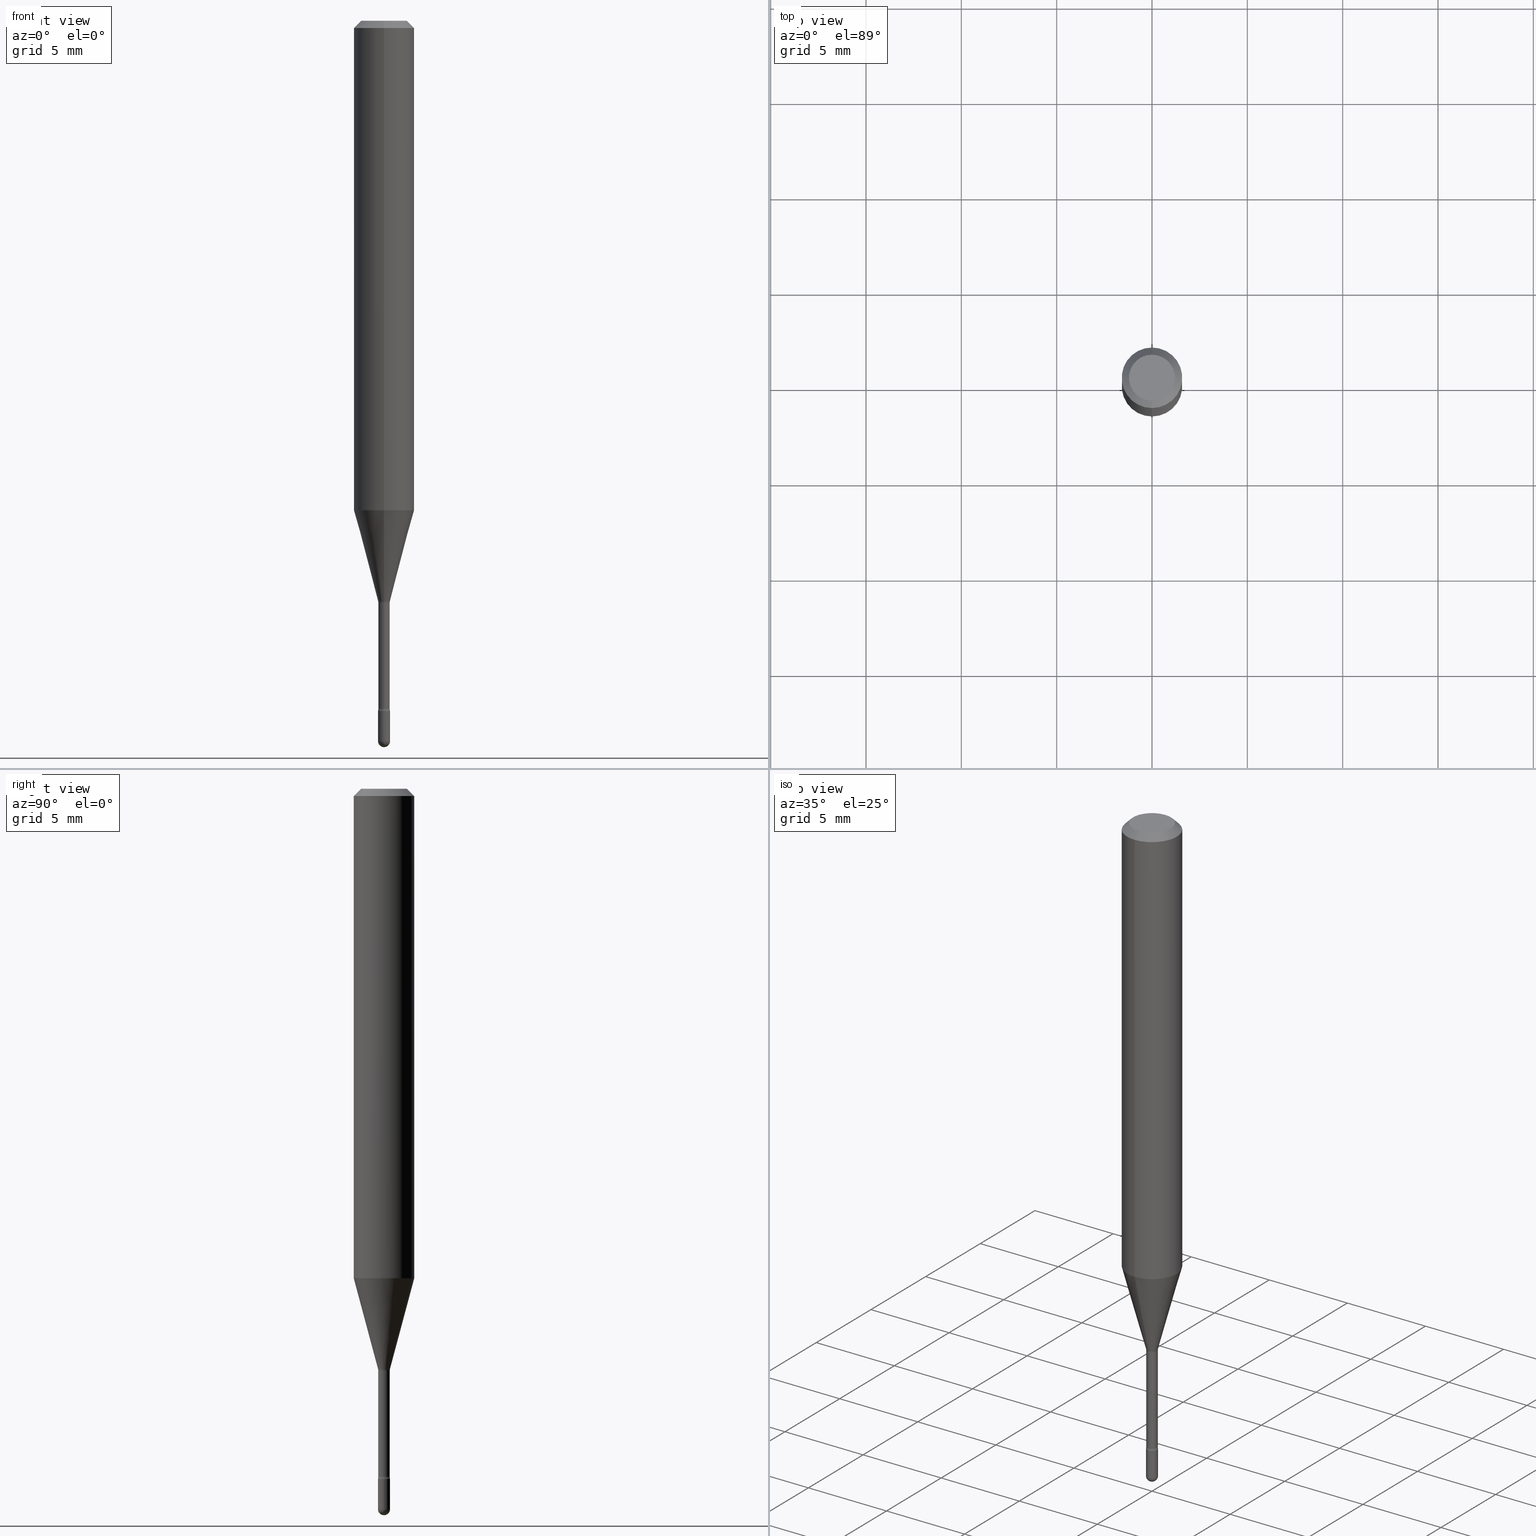
[diagram: canonical four-view strip — front | top / right | iso, engineering-drawing reading convention]
A machine part, canonical four-view strip (front | top / right | iso — engineering-drawing reading convention). The complete STEP part file that produces these views, byte-faithful:
ISO-10303-21;
HEADER;
FILE_DESCRIPTION (( 'STEP AP203' ),
    '1' );
FILE_NAME ('03781.STEP',
    '2024-04-09T20:26:31',
    ( '' ),
    ( '' ),
    'SwSTEP 2.0',
    'SolidWorks 2023',
    '' );
FILE_SCHEMA (( 'CONFIG_CONTROL_DESIGN' ));
ENDSEC;

DATA;
#1 = LOCAL_TIME ( 16, 26, 31.00000000000000000, #391 ) ;
#2 = VERTEX_POINT ( 'NONE', #113 ) ;
#3 = ADVANCED_FACE ( 'NONE', ( #296 ), #215, .F. ) ;
#4 = COORDINATED_UNIVERSAL_TIME_OFFSET ( 5, 0, .BEHIND. ) ;
#5 = CARTESIAN_POINT ( 'NONE',  ( 3.484793048813820547E-29, -4.975360907851483175E-15, -1.425000000000000266 ) ) ;
#6 = MECHANICAL_CONTEXT ( 'NONE', #464, 'mechanical' ) ;
#7 = ORIENTED_EDGE ( 'NONE', *, *, #136, .T. ) ;
#8 = AXIS2_PLACEMENT_3D ( 'NONE', #189, #361, #272 ) ;
#9 = ADVANCED_FACE ( 'NONE', ( #423 ), #115, .T. ) ;
#10 = AXIS2_PLACEMENT_3D ( 'NONE', #258, #249, #69 ) ;
#11 = EDGE_LOOP ( 'NONE', ( #320, #349, #335, #158 ) ) ;
#12 = CARTESIAN_POINT ( 'NONE',  ( 3.637634849200391024E-29, -5.193578491529179010E-15, -1.487500000000000266 ) ) ;
#13 = DATE_AND_TIME ( #86, #1 ) ;
#14 = LINE ( 'NONE', #490, #492 ) ;
#15 = DIRECTION ( 'NONE',  ( -2.445468806185136597E-29, 3.491481338843145583E-15, 1.000000000000000000 ) ) ;
#16 = APPLICATION_CONTEXT ( 'configuration controlled 3d designs of mechanical parts and assemblies' ) ;
#17 = CIRCLE ( 'NONE', #8, 0.01249999999999996947 ) ;
#18 = LINE ( 'NONE', #196, #40 ) ;
#19 = VERTEX_POINT ( 'NONE', #175 ) ;
#20 = DIRECTION ( 'NONE',  ( -2.445512229756394433E-29, 3.491419153817588613E-15, 1.000000000000000000 ) ) ;
#21 = VERTEX_POINT ( 'NONE', #137 ) ;
#22 = DIRECTION ( 'NONE',  ( 1.000000000000000000, -6.982962677686292743E-15, 0.000000000000000000 ) ) ;
#23 = EDGE_CURVE ( 'NONE', #253, #289, #542, .T. ) ;
#24 = ORIENTED_EDGE ( 'NONE', *, *, #527, .T. ) ;
#25 = DIRECTION ( 'NONE',  ( -6.982962677686265922E-15, -1.000000000000000000, 3.491419153817588613E-15 ) ) ;
#26 = CIRCLE ( 'NONE', #453, 0.01250000000000000243 ) ;
#27 = CONICAL_SURFACE ( 'NONE', #282, 0.01226111260566398360, 0.2617993877991499074 ) ;
#28 = CONICAL_SURFACE ( 'NONE', #418, 0.06250000000000000000, 0.7853981633974483900 ) ;
#29 = VERTEX_POINT ( 'NONE', #375 ) ;
#30 = DIRECTION ( 'NONE',  ( 1.000000000000000000, -6.982962677686292743E-15, 0.000000000000000000 ) ) ;
#31 = CC_DESIGN_PERSON_AND_ORGANIZATION_ASSIGNMENT ( #88, #481, ( #266 ) ) ;
#32 = VERTEX_POINT ( 'NONE', #553 ) ;
#33 = AXIS2_PLACEMENT_3D ( 'NONE', #83, #393, #397 ) ;
#34 = TOROIDAL_SURFACE ( 'NONE', #389, 0.02675000000000000294, 0.01499999999999998904 ) ;
#35 = EDGE_LOOP ( 'NONE', ( #71, #279, #530, #89 ) ) ;
#36 = DIRECTION ( 'NONE',  ( -2.445512229756394153E-29, 3.491419153817588613E-15, 1.000000000000000000 ) ) ;
#37 = DIRECTION ( 'NONE',  ( -6.982962677686265922E-15, -1.000000000000000000, 4.370956789862821150E-15 ) ) ;
#38 = DIRECTION ( 'NONE',  ( -2.445512229756394153E-29, 3.491419153817588613E-15, 1.000000000000000000 ) ) ;
#39 = PERSON_AND_ORGANIZATION ( #214, #358 ) ;
#40 = VECTOR ( 'NONE', #153, 39.37007874015748143 ) ;
#41 = PERSON_AND_ORGANIZATION_ROLE ( 'creator' ) ;
#42 = DIRECTION ( 'NONE',  ( -6.982962677686266711E-15, -1.000000000000000000, 3.491419153817588613E-15 ) ) ;
#43 = DIRECTION ( 'NONE',  ( -2.445512229756394153E-29, 3.491419153817588613E-15, 1.000000000000000000 ) ) ;
#44 = DIRECTION ( 'NONE',  ( -6.982962677686265133E-15, -1.000000000000000000, 0.000000000000000000 ) ) ;
#45 = DIRECTION ( 'NONE',  ( -2.445512229756394153E-29, 3.491419153817588613E-15, 1.000000000000000000 ) ) ;
#46 = CIRCLE ( 'NONE', #417, 0.01250000000000000069 ) ;
#47 = PERSON_AND_ORGANIZATION ( #214, #358 ) ;
#48 = VECTOR ( 'NONE', #384, 39.37007874015748143 ) ;
#49 = DIRECTION ( 'NONE',  ( -6.982962677686265922E-15, -1.000000000000000000, 3.491419153817587824E-15 ) ) ;
#50 = EDGE_CURVE ( 'NONE', #509, #489, #130, .T. ) ;
#51 = CARTESIAN_POINT ( 'NONE',  ( 4.440892098500871695E-16, 0.06249999999999647504, -1.010598421515880085 ) ) ;
#52 = CARTESIAN_POINT ( 'NONE',  ( 3.668268344634611408E-31, -5.237128730726412034E-17, -0.01500000000000008271 ) ) ;
#53 = VERTEX_POINT ( 'NONE', #239 ) ;
#54 = CIRCLE ( 'NONE', #300, 0.06250000000000000000 ) ;
#55 = APPROVAL ( #228, 'UNSPECIFIED' ) ;
#56 = FACE_OUTER_BOUND ( 'NONE', #449, .T. ) ;
#57 = ORIENTED_EDGE ( 'NONE', *, *, #506, .F. ) ;
#58 = DIRECTION ( 'NONE',  ( 2.445512229756394153E-29, -3.491419153817588613E-15, -1.000000000000000000 ) ) ;
#59 = EDGE_LOOP ( 'NONE', ( #432, #343, #461, #261 ) ) ;
#60 = VERTEX_POINT ( 'NONE', #413 ) ;
#61 = CARTESIAN_POINT ( 'NONE',  ( -8.204981146278427787E-17, -0.01175000000000420153, -1.201974787463810701 ) ) ;
#62 = CIRCLE ( 'NONE', #315, 0.01499999999999998557 ) ;
#63 = AXIS2_PLACEMENT_3D ( 'NONE', #297, #114, #421 ) ;
#64 = EDGE_LOOP ( 'NONE', ( #411, #237, #161, #123 ) ) ;
#65 = CARTESIAN_POINT ( 'NONE',  ( 3.316907271900976096E-16, 0.04749999999999999362, 3.181929670915790944E-17 ) ) ;
#66 = ORIENTED_EDGE ( 'NONE', *, *, #392, .T. ) ;
#67 = DIRECTION ( 'NONE',  ( -2.445468806185136597E-29, 3.491481338843145583E-15, 1.000000000000000000 ) ) ;
#68 = EDGE_CURVE ( 'NONE', #415, #32, #74, .T. ) ;
#69 = DIRECTION ( 'NONE',  ( 1.000000000000000000, -6.982962677686265922E-15, 4.876176775795935793E-29 ) ) ;
#70 = ORIENTED_EDGE ( 'NONE', *, *, #262, .F. ) ;
#71 = ORIENTED_EDGE ( 'NONE', *, *, #281, .F. ) ;
#72 = FACE_OUTER_BOUND ( 'NONE', #525, .T. ) ;
#73 = ORIENTED_EDGE ( 'NONE', *, *, #302, .T. ) ;
#74 = CIRCLE ( 'NONE', #273, 0.01250000000000000069 ) ;
#75 = AXIS2_PLACEMENT_3D ( 'NONE', #477, #403, #42 ) ;
#76 = LOCAL_TIME ( 16, 26, 31.00000000000000000, #360 ) ;
#77 = ORIENTED_EDGE ( 'NONE', *, *, #470, .F. ) ;
#78 = LINE ( 'NONE', #565, #535 ) ;
#79 = EDGE_CURVE ( 'NONE', #21, #164, #173, .T. ) ;
#80 = EDGE_CURVE ( 'NONE', #21, #489, #564, .T. ) ;
#81 = ORIENTED_EDGE ( 'NONE', *, *, #80, .T. ) ;
#82 = APPLICATION_PROTOCOL_DEFINITION ( 'international standard', 'config_control_design', 1994, #464 ) ;
#83 = CARTESIAN_POINT ( 'NONE',  ( 2.929949865500210976E-29, -4.183043108785318742E-15, -1.198092501787273223 ) ) ;
#84 = ADVANCED_FACE ( 'NONE', ( #267 ), #274, .F. ) ;
#85 = AXIS2_PLACEMENT_3D ( 'NONE', #117, #67, #213 ) ;
#86 = CALENDAR_DATE ( 2024, 9, 4 ) ;
#87 = DIRECTION ( 'NONE',  ( 1.000000000000000000, -7.105427357601001070E-15, 4.926314746995157045E-29 ) ) ;
#88 = PERSON_AND_ORGANIZATION ( #214, #358 ) ;
#89 = ORIENTED_EDGE ( 'NONE', *, *, #111, .F. ) ;
#90 = CARTESIAN_POINT ( 'NONE',  ( 3.473339087963991852E-29, -4.959007687372093417E-15, -1.420316251501201554 ) ) ;
#91 = EDGE_CURVE ( 'NONE', #29, #415, #438, .T. ) ;
#92 = APPROVAL_DATE_TIME ( #143, #546 ) ;
#93 = EDGE_LOOP ( 'NONE', ( #257, #150, #168, #100 ) ) ;
#94 = DIRECTION ( 'NONE',  ( -2.445468806185136877E-29, 3.491481338843145188E-15, 1.000000000000000000 ) ) ;
#95 = VECTOR ( 'NONE', #94, 39.37007874015748143 ) ;
#96 = AXIS2_PLACEMENT_3D ( 'NONE', #386, #562, #170 ) ;
#97 = DIRECTION ( 'NONE',  ( -6.982962677686265133E-15, -1.000000000000000000, 0.000000000000000000 ) ) ;
#98 = DIRECTION ( 'NONE',  ( -6.982962677686265922E-15, -1.000000000000000000, 3.483106191921935554E-15 ) ) ;
#99 = VERTEX_POINT ( 'NONE', #230 ) ;
#100 = ORIENTED_EDGE ( 'NONE', *, *, #80, .F. ) ;
#101 = FACE_OUTER_BOUND ( 'NONE', #512, .T. ) ;
#102 = VERTEX_POINT ( 'NONE', #405 ) ;
#103 = ADVANCED_FACE ( 'NONE', ( #222 ), #146, .T. ) ;
#104 = AXIS2_PLACEMENT_3D ( 'NONE', #232, #543, #377 ) ;
#105 = CARTESIAN_POINT ( 'NONE',  ( 3.668268344634611408E-31, -5.237128730726412034E-17, -0.01500000000000008271 ) ) ;
#106 = DIMENSIONAL_EXPONENTS ( 1.000000000000000000, 0.000000000000000000, 0.000000000000000000, 0.000000000000000000, 0.000000000000000000, 0.000000000000000000, 0.000000000000000000 ) ;
#107 = SPHERICAL_SURFACE ( 'NONE', #186, 0.01249999999999996947 ) ;
#108 = ORIENTED_EDGE ( 'NONE', *, *, #50, .F. ) ;
#109 = VERTEX_POINT ( 'NONE', #177 ) ;
#110 = DIRECTION ( 'NONE',  ( -6.982962677686265133E-15, -1.000000000000000000, 3.491419153817589797E-15 ) ) ;
#111 = EDGE_CURVE ( 'NONE', #398, #234, #62, .T. ) ;
#112 = CIRCLE ( 'NONE', #308, 0.01499999999999998904 ) ;
#113 = CARTESIAN_POINT ( 'NONE',  ( -3.773273898774340269E-16, -0.04749999999999999362, 8.309242394607611627E-17 ) ) ;
#114 = DIRECTION ( 'NONE',  ( -2.445512229756394153E-29, 3.491419153817588613E-15, 1.000000000000000000 ) ) ;
#115 = CYLINDRICAL_SURFACE ( 'NONE', #202, 0.01250000000000000243 ) ;
#116 = ORIENTED_EDGE ( 'NONE', *, *, #136, .F. ) ;
#117 = CARTESIAN_POINT ( 'NONE',  ( 0.000000000000000000, 0.000000000000000000, 0.000000000000000000 ) ) ;
#118 = EDGE_CURVE ( 'NONE', #29, #172, #532, .T. ) ;
#119 = EDGE_CURVE ( 'NONE', #102, #234, #46, .T. ) ;
#120 = DIRECTION ( 'NONE',  ( -2.445512229756394153E-29, 3.491419153817588613E-15, 1.000000000000000000 ) ) ;
#121 = AXIS2_PLACEMENT_3D ( 'NONE', #210, #340, #250 ) ;
#122 = DIRECTION ( 'NONE',  ( -1.807323732225327773E-15, -0.2588190451025178529, 0.9659258262890690894 ) ) ;
#123 = ORIENTED_EDGE ( 'NONE', *, *, #392, .F. ) ;
#124 = DATE_AND_TIME ( #476, #454 ) ;
#125 = DIRECTION ( 'NONE',  ( 1.000000000000000000, -6.982962677686292743E-15, 0.000000000000000000 ) ) ;
#126 = ADVANCED_FACE ( 'NONE', ( #314 ), #276, .T. ) ;
#127 = CC_DESIGN_PERSON_AND_ORGANIZATION_ASSIGNMENT ( #190, #41, ( #256 ) ) ;
#128 = APPROVAL_DATE_TIME ( #13, #55 ) ;
#129 = DIRECTION ( 'NONE',  ( -2.445512229756394153E-29, 3.491419153817588613E-15, 1.000000000000000000 ) ) ;
#130 = CIRCLE ( 'NONE', #325, 0.06250000000000000000 ) ;
#131 = VECTOR ( 'NONE', #407, 39.37007874015748143 ) ;
#132 = CC_DESIGN_APPROVAL ( #546, ( #442 ) ) ;
#133 = DATE_AND_TIME ( #531, #236 ) ;
#134 = EDGE_CURVE ( 'NONE', #53, #32, #350, .T. ) ;
#135 = SPHERICAL_SURFACE ( 'NONE', #235, 0.01249999999999996947 ) ;
#136 = EDGE_CURVE ( 'NONE', #60, #19, #112, .T. ) ;
#137 = CARTESIAN_POINT ( 'NONE',  ( -4.364351673553669682E-16, -0.06250000000000353884, -1.010598421515879641 ) ) ;
#138 = DIRECTION ( 'NONE',  ( 1.000000000000000000, 0.000000000000000000, 0.000000000000000000 ) ) ;
#139 = ORIENTED_EDGE ( 'NONE', *, *, #295, .T. ) ;
#140 = CARTESIAN_POINT ( 'NONE',  ( -0.01250000000000000243, 8.881784197001254049E-17, -6.148668862818633278E-31 ) ) ;
#141 = PRODUCT_RELATED_PRODUCT_CATEGORY ( 'detail', '', ( #191 ) ) ;
#142 = CARTESIAN_POINT ( 'NONE',  ( -1.867942516280782514E-16, -0.02675000000000419750, -1.201974787463810701 ) ) ;
#143 = DATE_AND_TIME ( #487, #76 ) ;
#144 = EDGE_CURVE ( 'NONE', #398, #99, #326, .T. ) ;
#145 = DIRECTION ( 'NONE',  ( -6.982962677686265922E-15, -1.000000000000000000, 4.370956789862821150E-15 ) ) ;
#146 = CONICAL_SURFACE ( 'NONE', #33, 0.01226111260566398360, 0.2617993877991499074 ) ;
#147 = CIRCLE ( 'NONE', #96, 0.01175000000000000523 ) ;
#148 = DIRECTION ( 'NONE',  ( -2.445512229756394153E-29, 3.491419153817588613E-15, 1.000000000000000000 ) ) ;
#149 = DIRECTION ( 'NONE',  ( 1.000000000000000000, -6.982962677686292743E-15, 0.000000000000000000 ) ) ;
#150 = ORIENTED_EDGE ( 'NONE', *, *, #262, .T. ) ;
#151 = DIRECTION ( 'NONE',  ( -6.982962677686266711E-15, -1.000000000000000000, 0.000000000000000000 ) ) ;
#152 = VECTOR ( 'NONE', #20, 39.37007874015748143 ) ;
#153 = DIRECTION ( 'NONE',  ( 4.937700262164548042E-15, 0.7071067811865451302, -0.7071067811865499042 ) ) ;
#154 = APPROVAL_PERSON_ORGANIZATION ( #47, #55, #313 ) ;
#155 = ORIENTED_EDGE ( 'NONE', *, *, #544, .F. ) ;
#156 = DIRECTION ( 'NONE',  ( -6.982962677686265922E-15, -1.000000000000000000, 3.491419153817587824E-15 ) ) ;
#157 = CARTESIAN_POINT ( 'NONE',  ( 3.668268344634611408E-31, -5.237128730726412034E-17, -0.01500000000000008271 ) ) ;
#158 = ORIENTED_EDGE ( 'NONE', *, *, #470, .T. ) ;
#159 = EDGE_CURVE ( 'NONE', #99, #19, #14, .T. ) ;
#160 =( CONVERSION_BASED_UNIT ( 'INCH', #419 ) LENGTH_UNIT ( ) NAMED_UNIT ( #106 ) );
#161 = ORIENTED_EDGE ( 'NONE', *, *, #355, .F. ) ;
#162 = DIRECTION ( 'NONE',  ( -6.982962677686266711E-15, -1.000000000000000000, 3.491419153817588613E-15 ) ) ;
#163 = VECTOR ( 'NONE', #322, 39.37007874015748854 ) ;
#164 = VERTEX_POINT ( 'NONE', #51 ) ;
#165 = ORIENTED_EDGE ( 'NONE', *, *, #364, .T. ) ;
#166 = FACE_OUTER_BOUND ( 'NONE', #169, .T. ) ;
#167 = ADVANCED_FACE ( 'NONE', ( #354 ), #551, .F. ) ;
#168 = ORIENTED_EDGE ( 'NONE', *, *, #302, .F. ) ;
#169 = EDGE_LOOP ( 'NONE', ( #183, #537 ) ) ;
#170 = DIRECTION ( 'NONE',  ( -6.982962677686265922E-15, -1.000000000000000000, 0.000000000000000000 ) ) ;
#171 = DIRECTION ( 'NONE',  ( 6.982962677686265922E-15, 1.000000000000000000, -3.491419153817588613E-15 ) ) ;
#172 = VERTEX_POINT ( 'NONE', #493 ) ;
#173 = CIRCLE ( 'NONE', #255, 0.06250000000000000000 ) ;
#174 = APPROVAL_PERSON_ORGANIZATION ( #39, #225, #388 ) ;
#175 = CARTESIAN_POINT ( 'NONE',  ( 8.348877145184664215E-17, 0.01174999999999580894, -1.201974787463810701 ) ) ;
#176 = DATE_AND_TIME ( #269, #494 ) ;
#177 = CARTESIAN_POINT ( 'NONE',  ( 3.840629472727447874E-16, 0.04749999999999999362, -2.485923956665947374E-16 ) ) ;
#178 =( NAMED_UNIT ( * ) SI_UNIT ( $, .STERADIAN. ) SOLID_ANGLE_UNIT ( ) );
#179 = FACE_OUTER_BOUND ( 'NONE', #35, .T. ) ;
#180 = DIRECTION ( 'NONE',  ( -2.445512229756394433E-29, 3.491419153817588613E-15, 1.000000000000000000 ) ) ;
#181 = ADVANCED_FACE ( 'NONE', ( #441 ), #135, .T. ) ;
#182 = APPROVAL_ROLE ( '' ) ;
#183 = ORIENTED_EDGE ( 'NONE', *, *, #68, .T. ) ;
#184 = DIRECTION ( 'NONE',  ( -1.000000000000000000, 6.982962677686265922E-15, -4.883557194083112340E-29 ) ) ;
#185 = CLOSED_SHELL ( 'NONE', ( #488, #404, #465, #181, #9 ) ) ;
#186 = AXIS2_PLACEMENT_3D ( 'NONE', #416, #474, #294 ) ;
#187 = AXIS2_PLACEMENT_3D ( 'NONE', #518, #344, #30 ) ;
#188 = PERSON_AND_ORGANIZATION ( #214, #358 ) ;
#189 = CARTESIAN_POINT ( 'NONE',  ( 3.637634849200391024E-29, -5.193578491529179010E-15, -1.487500000000000266 ) ) ;
#190 = PERSON_AND_ORGANIZATION ( #214, #358 ) ;
#191 = PRODUCT ( '03781', '03781', '', ( #6 ) ) ;
#192 = CARTESIAN_POINT ( 'NONE',  ( -8.561889171223090403E-17, -0.01226111260566816602, -1.198092501787273223 ) ) ;
#193 = CIRCLE ( 'NONE', #566, 0.01499999999999998557 ) ;
#194 = CC_DESIGN_SECURITY_CLASSIFICATION ( #266, ( #256 ) ) ;
#195 = EDGE_CURVE ( 'NONE', #32, #415, #380, .T. ) ;
#196 = CARTESIAN_POINT ( 'NONE',  ( 4.364351673553919652E-16, 0.06249999999999995143, -0.01500000000000030129 ) ) ;
#197 = CYLINDRICAL_SURFACE ( 'NONE', #336, 0.06250000000000000000 ) ;
#198 = DIRECTION ( 'NONE',  ( 1.000000000000000000, -6.982962677686294321E-15, 0.000000000000000000 ) ) ;
#199 = ADVANCED_FACE ( 'NONE', ( #179 ), #466, .F. ) ;
#200 = LINE ( 'NONE', #204, #131 ) ;
#201 = ORIENTED_EDGE ( 'NONE', *, *, #195, .F. ) ;
#202 = AXIS2_PLACEMENT_3D ( 'NONE', #478, #445, #359 ) ;
#203 = CIRCLE ( 'NONE', #247, 0.01226111260566398360 ) ;
#204 = CARTESIAN_POINT ( 'NONE',  ( -4.287811248607203282E-16, -0.06250000000000005551, -0.01499999999999986587 ) ) ;
#205 = AXIS2_PLACEMENT_3D ( 'NONE', #427, #513, #298 ) ;
#206 = ORIENTED_EDGE ( 'NONE', *, *, #409, .T. ) ;
#207 = CARTESIAN_POINT ( 'NONE',  ( 2.939391848563758953E-29, -4.196672540189851950E-15, -1.201974787463810923 ) ) ;
#208 = ORIENTED_EDGE ( 'NONE', *, *, #506, .T. ) ;
#209 = FACE_OUTER_BOUND ( 'NONE', #59, .T. ) ;
#210 = CARTESIAN_POINT ( 'NONE',  ( 3.484854927402862201E-29, -4.975272294190064346E-15, -1.425000000000000266 ) ) ;
#211 = AXIS2_PLACEMENT_3D ( 'NONE', #52, #58, #456 ) ;
#212 = EDGE_CURVE ( 'NONE', #329, #288, #400, .T. ) ;
#213 = DIRECTION ( 'NONE',  ( 1.000000000000000000, -6.982962677686267499E-15, 4.876176775795936353E-29 ) ) ;
#214 = PERSON ( 'UNSPECIFIED', 'UNSPECIFIED', 'UNSPECIFIED', ('UNSPECIFIED'), ('UNSPECIFIED'), ('UNSPECIFIED') ) ;
#215 = PLANE ( 'NONE',  #245 ) ;
#216 = CARTESIAN_POINT ( 'NONE',  ( -8.204981146281379852E-17, -0.01175000000000002605, 5.190975739486028693E-16 ) ) ;
#217 = EDGE_CURVE ( 'NONE', #329, #172, #17, .T. ) ;
#218 = EDGE_LOOP ( 'NONE', ( #475, #455, #420, #155 ) ) ;
#219 = APPROVAL_STATUS ( 'not_yet_approved' ) ;
#220 = AXIS2_PLACEMENT_3D ( 'NONE', #90, #129, #268 ) ;
#221 = APPLICATION_PROTOCOL_DEFINITION ( 'international standard', 'config_control_design', 1994, #16 ) ;
#222 = FACE_OUTER_BOUND ( 'NONE', #516, .T. ) ;
#223 = ORIENTED_EDGE ( 'NONE', *, *, #240, .F. ) ;
#224 = CARTESIAN_POINT ( 'NONE',  ( 3.637634849200391024E-29, -5.193578491529179010E-15, -1.487500000000000266 ) ) ;
#225 = APPROVAL ( #219, 'UNSPECIFIED' ) ;
#226 = DIRECTION ( 'NONE',  ( -2.445468806185136597E-29, 3.491481338843145583E-15, 1.000000000000000000 ) ) ;
#227 = CIRCLE ( 'NONE', #373, 0.01175000000000004513 ) ;
#228 = APPROVAL_STATUS ( 'not_yet_approved' ) ;
#229 = DIRECTION ( 'NONE',  ( 7.105427357601000281E-15, 1.000000000000000000, 0.000000000000000000 ) ) ;
#230 = CARTESIAN_POINT ( 'NONE',  ( 8.615330671094704487E-17, 0.01174999999999508729, -1.420316251501201554 ) ) ;
#231 = EDGE_CURVE ( 'NONE', #164, #21, #54, .T. ) ;
#232 = CARTESIAN_POINT ( 'NONE',  ( 2.939391848563758953E-29, -4.196672540189851950E-15, -1.201974787463810923 ) ) ;
#233 = DIRECTION ( 'NONE',  ( -2.445512229756393873E-29, 3.491419153817588613E-15, 1.000000000000000000 ) ) ;
#234 = VERTEX_POINT ( 'NONE', #511 ) ;
#235 = AXIS2_PLACEMENT_3D ( 'NONE', #12, #439, #311 ) ;
#236 = LOCAL_TIME ( 16, 26, 31.00000000000000000, #402 ) ;
#237 = ORIENTED_EDGE ( 'NONE', *, *, #212, .T. ) ;
#238 = FACE_OUTER_BOUND ( 'NONE', #64, .T. ) ;
#239 = CARTESIAN_POINT ( 'NONE',  ( -0.01250000000000000243, -4.995651857720318490E-15, -1.487499999999999822 ) ) ;
#240 = EDGE_CURVE ( 'NONE', #253, #60, #203, .T. ) ;
#241 = PLANE ( 'NONE',  #480 ) ;
#242 = DIRECTION ( 'NONE',  ( -2.445468806185136597E-29, 3.491481338843145583E-15, 1.000000000000000000 ) ) ;
#243 = ORIENTED_EDGE ( 'NONE', *, *, #557, .T. ) ;
#244 = DIRECTION ( 'NONE',  ( -2.445468806185136597E-29, 3.491481338843145583E-15, 1.000000000000000000 ) ) ;
#245 = AXIS2_PLACEMENT_3D ( 'NONE', #65, #517, #171 ) ;
#246 = ORIENTED_EDGE ( 'NONE', *, *, #217, .T. ) ;
#247 = AXIS2_PLACEMENT_3D ( 'NONE', #548, #319, #499 ) ;
#248 = CARTESIAN_POINT ( 'NONE',  ( 3.668737688208442503E-29, -5.236456604015251240E-15, -1.500000000000000222 ) ) ;
#249 = DIRECTION ( 'NONE',  ( -2.438088387897960049E-29, 3.491481338843145188E-15, 1.000000000000000000 ) ) ;
#250 = DIRECTION ( 'NONE',  ( -6.982962677686265133E-15, -1.000000000000000000, 0.000000000000000000 ) ) ;
#251 = MANIFOLD_SOLID_BREP ( 'Body-Move/Copy2[1]', #185 ) ;
#252 = DIRECTION ( 'NONE',  ( -2.445512229756394153E-29, 3.491419153817588613E-15, 1.000000000000000000 ) ) ;
#253 = VERTEX_POINT ( 'NONE', #192 ) ;
#254 = DIRECTION ( 'NONE',  ( -6.982962677686266711E-15, -1.000000000000000000, 3.491419153817588613E-15 ) ) ;
#255 = AXIS2_PLACEMENT_3D ( 'NONE', #323, #252, #37 ) ;
#256 = PRODUCT_DEFINITION_FORMATION_WITH_SPECIFIED_SOURCE ( 'ANY', '', #191, .NOT_KNOWN. ) ;
#257 = ORIENTED_EDGE ( 'NONE', *, *, #79, .T. ) ;
#258 = CARTESIAN_POINT ( 'NONE',  ( 3.484793048813820547E-29, -4.975360907851483175E-15, -1.425000000000000266 ) ) ;
#259 = ADVANCED_FACE ( 'NONE', ( #371 ), #291, .T. ) ;
#260 = COORDINATED_UNIVERSAL_TIME_OFFSET ( 5, 0, .BEHIND. ) ;
#261 = ORIENTED_EDGE ( 'NONE', *, *, #409, .F. ) ;
#262 = EDGE_CURVE ( 'NONE', #164, #509, #287, .T. ) ;
#263 = SHAPE_DEFINITION_REPRESENTATION ( #316, #342 ) ;
#264 = CARTESIAN_POINT ( 'NONE',  ( 3.637634849200390463E-29, -5.193578491529179010E-15, -1.487499999999999822 ) ) ;
#265 = AXIS2_PLACEMENT_3D ( 'NONE', #357, #312, #528 ) ;
#266 = SECURITY_CLASSIFICATION ( '', '', #362 ) ;
#267 = FACE_OUTER_BOUND ( 'NONE', #410, .T. ) ;
#268 = DIRECTION ( 'NONE',  ( -6.982962677686266711E-15, -1.000000000000000000, 3.491419153817588613E-15 ) ) ;
#269 = CALENDAR_DATE ( 2024, 9, 4 ) ;
#270 = DIRECTION ( 'NONE',  ( -1.000000000000000000, 7.105427357601001070E-15, -4.926315508542082329E-29 ) ) ;
#271 = DATE_TIME_ROLE ( 'creation_date' ) ;
#272 = DIRECTION ( 'NONE',  ( 6.982962677686265922E-15, 1.000000000000000000, 0.000000000000000000 ) ) ;
#273 = AXIS2_PLACEMENT_3D ( 'NONE', #285, #242, #198 ) ;
#274 = TOROIDAL_SURFACE ( 'NONE', #104, 0.02675000000000000294, 0.01499999999999998904 ) ;
#275 = AXIS2_PLACEMENT_3D ( 'NONE', #328, #15, #22 ) ;
#276 = CYLINDRICAL_SURFACE ( 'NONE', #293, 0.06250000000000000000 ) ;
#277 = DESIGN_CONTEXT ( 'detailed design', #16, 'design' ) ;
#278 = DIRECTION ( 'NONE',  ( 7.105427357600997914E-15, 1.000000000000000000, 0.000000000000000000 ) ) ;
#279 = ORIENTED_EDGE ( 'NONE', *, *, #318, .T. ) ;
#280 = CARTESIAN_POINT ( 'NONE',  ( 3.637634849200390463E-29, -5.193578491529179010E-15, -1.487499999999999822 ) ) ;
#281 = EDGE_CURVE ( 'NONE', #99, #398, #227, .T. ) ;
#282 = AXIS2_PLACEMENT_3D ( 'NONE', #545, #148, #372 ) ;
#283 = CIRCLE ( 'NONE', #338, 0.01175000000000000523 ) ;
#284 = DIRECTION ( 'NONE',  ( 1.000000000000000000, -7.105427357601001070E-15, 4.926314746995157045E-29 ) ) ;
#285 = CARTESIAN_POINT ( 'NONE',  ( 3.484793048813820547E-29, -4.975360907851483175E-15, -1.425000000000000266 ) ) ;
#286 = ORIENTED_EDGE ( 'NONE', *, *, #563, .F. ) ;
#287 = LINE ( 'NONE', #496, #152 ) ;
#288 = VERTEX_POINT ( 'NONE', #552 ) ;
#289 = VERTEX_POINT ( 'NONE', #61 ) ;
#290 = ORIENTED_EDGE ( 'NONE', *, *, #549, .T. ) ;
#291 = CYLINDRICAL_SURFACE ( 'NONE', #425, 0.01175000000000002605 ) ;
#292 = ORIENTED_EDGE ( 'NONE', *, *, #91, .F. ) ;
#293 = AXIS2_PLACEMENT_3D ( 'NONE', #436, #307, #49 ) ;
#294 = DIRECTION ( 'NONE',  ( 6.982962677686266711E-15, 1.000000000000000000, 0.000000000000000000 ) ) ;
#295 = EDGE_CURVE ( 'NONE', #109, #509, #18, .T. ) ;
#296 = FACE_OUTER_BOUND ( 'NONE', #498, .T. ) ;
#297 = CARTESIAN_POINT ( 'NONE',  ( 2.023868620877359543E-45, -2.888851566041158164E-31, -8.274998586025931673E-17 ) ) ;
#298 = DIRECTION ( 'NONE',  ( -6.982962677686265133E-15, -1.000000000000000000, 3.491419153817589797E-15 ) ) ;
#299 = CARTESIAN_POINT ( 'NONE',  ( 2.929949865500210976E-29, -4.183043108785318742E-15, -1.198092501787273223 ) ) ;
#300 = AXIS2_PLACEMENT_3D ( 'NONE', #363, #540, #145 ) ;
#301 = CARTESIAN_POINT ( 'NONE',  ( 0.01250000000000000069, -5.062647941322562298E-15, -1.425000000000000266 ) ) ;
#302 = EDGE_CURVE ( 'NONE', #489, #509, #433, .T. ) ;
#303 = ORIENTED_EDGE ( 'NONE', *, *, #306, .F. ) ;
#304 = DIRECTION ( 'NONE',  ( -2.445512229756394433E-29, 3.491419153817588613E-15, 1.000000000000000000 ) ) ;
#305 = PERSON_AND_ORGANIZATION ( #214, #358 ) ;
#306 = EDGE_CURVE ( 'NONE', #60, #164, #452, .T. ) ;
#307 = DIRECTION ( 'NONE',  ( -2.445512229756394153E-29, 3.491419153817588613E-15, 1.000000000000000000 ) ) ;
#308 = AXIS2_PLACEMENT_3D ( 'NONE', #443, #87, #229 ) ;
#309 = CC_DESIGN_APPROVAL ( #225, ( #266 ) ) ;
#310 = ORIENTED_EDGE ( 'NONE', *, *, #231, .T. ) ;
#311 = DIRECTION ( 'NONE',  ( 6.982962677686266711E-15, 1.000000000000000000, 0.000000000000000000 ) ) ;
#312 = DIRECTION ( 'NONE',  ( -2.445512229756394153E-29, 3.491419153817588613E-15, 1.000000000000000000 ) ) ;
#313 = APPROVAL_ROLE ( '' ) ;
#314 = FACE_OUTER_BOUND ( 'NONE', #501, .T. ) ;
#315 = AXIS2_PLACEMENT_3D ( 'NONE', #446, #184, #44 ) ;
#316 = PRODUCT_DEFINITION_SHAPE ( 'NONE', 'NONE',  #442 ) ;
#317 = DIRECTION ( 'NONE',  ( -2.445512229756394153E-29, 3.491419153817588613E-15, 1.000000000000000000 ) ) ;
#318 = EDGE_CURVE ( 'NONE', #99, #102, #193, .T. ) ;
#319 = DIRECTION ( 'NONE',  ( -2.445512229756394153E-29, 3.491419153817588613E-15, 1.000000000000000000 ) ) ;
#320 = ORIENTED_EDGE ( 'NONE', *, *, #318, .F. ) ;
#321 = CC_DESIGN_PERSON_AND_ORGANIZATION_ASSIGNMENT ( #188, #491, ( #256 ) ) ;
#322 = DIRECTION ( 'NONE',  ( 1.839019923739597554E-15, 0.2588190451025245697, 0.9659258262890670910 ) ) ;
#323 = CARTESIAN_POINT ( 'NONE',  ( 2.471430799189591968E-29, -3.528422685698364125E-15, -1.010598421515879863 ) ) ;
#324 = ORIENTED_EDGE ( 'NONE', *, *, #91, .T. ) ;
#325 = AXIS2_PLACEMENT_3D ( 'NONE', #157, #45, #394 ) ;
#326 = CIRCLE ( 'NONE', #265, 0.01175000000000004513 ) ;
#327 = CIRCLE ( 'NONE', #121, 0.01250000000000000069 ) ;
#328 = CARTESIAN_POINT ( 'NONE',  ( 3.637634849200390463E-29, -5.193578491529179010E-15, -1.487499999999999822 ) ) ;
#329 = VERTEX_POINT ( 'NONE', #248 ) ;
#330 = DIRECTION ( 'NONE',  ( -2.445512229756394153E-29, 3.491419153817588613E-15, 1.000000000000000000 ) ) ;
#331 = ORIENTED_EDGE ( 'NONE', *, *, #563, .T. ) ;
#332 = LINE ( 'NONE', #216, #48 ) ;
#333 = ADVANCED_FACE ( 'NONE', ( #550 ), #197, .T. ) ;
#334 = CC_DESIGN_DATE_AND_TIME_ASSIGNMENT ( #133, #271, ( #442 ) ) ;
#335 = ORIENTED_EDGE ( 'NONE', *, *, #111, .T. ) ;
#336 = AXIS2_PLACEMENT_3D ( 'NONE', #458, #448, #156 ) ;
#337 = ADVANCED_FACE ( 'NONE', ( #101 ), #521, .T. ) ;
#338 = AXIS2_PLACEMENT_3D ( 'NONE', #412, #38, #339 ) ;
#339 = DIRECTION ( 'NONE',  ( -6.982962677686265922E-15, -1.000000000000000000, 0.000000000000000000 ) ) ;
#340 = DIRECTION ( 'NONE',  ( -2.445512229756394153E-29, 3.491419153817588613E-15, 1.000000000000000000 ) ) ;
#341 = ORIENTED_EDGE ( 'NONE', *, *, #212, .F. ) ;
#342 = ADVANCED_BREP_SHAPE_REPRESENTATION ( '03781', ( #251, #447, #426 ), #515 ) ;
#343 = ORIENTED_EDGE ( 'NONE', *, *, #281, .T. ) ;
#344 = DIRECTION ( 'NONE',  ( -2.445468806185136597E-29, 3.491481338843145583E-15, 1.000000000000000000 ) ) ;
#345 = ADVANCED_FACE ( 'NONE', ( #56 ), #241, .F. ) ;
#346 = ORIENTED_EDGE ( 'NONE', *, *, #119, .F. ) ;
#347 = CARTESIAN_POINT ( 'NONE',  ( 3.668268344634611408E-31, -5.237128730726412034E-17, -0.01500000000000008271 ) ) ;
#348 = CIRCLE ( 'NONE', #187, 0.01250000000000000243 ) ;
#349 = ORIENTED_EDGE ( 'NONE', *, *, #144, .F. ) ;
#350 = LINE ( 'NONE', #140, #95 ) ;
#351 = ORIENTED_EDGE ( 'NONE', *, *, #118, .T. ) ;
#352 = ORIENTED_EDGE ( 'NONE', *, *, #134, .T. ) ;
#353 = PERSON_AND_ORGANIZATION_ROLE ( 'creator' ) ;
#354 = FACE_OUTER_BOUND ( 'NONE', #11, .T. ) ;
#355 = EDGE_CURVE ( 'NONE', #53, #288, #408, .T. ) ;
#356 = PERSON_AND_ORGANIZATION ( #214, #358 ) ;
#357 = CARTESIAN_POINT ( 'NONE',  ( 3.473400763167947173E-29, -4.958919364969694174E-15, -1.420316251501201554 ) ) ;
#358 = ORGANIZATION ( 'UNSPECIFIED', 'UNSPECIFIED', '' ) ;
#359 = DIRECTION ( 'NONE',  ( 1.000000000000000000, -6.982962677686267499E-15, 4.876176775795936353E-29 ) ) ;
#360 = COORDINATED_UNIVERSAL_TIME_OFFSET ( 5, 0, .BEHIND. ) ;
#361 = DIRECTION ( 'NONE',  ( 1.000000000000000000, -6.982962677686265922E-15, 4.883557194083112340E-29 ) ) ;
#362 = SECURITY_CLASSIFICATION_LEVEL ( 'unclassified' ) ;
#363 = CARTESIAN_POINT ( 'NONE',  ( 2.471430799189591968E-29, -3.528422685698364125E-15, -1.010598421515879863 ) ) ;
#364 = EDGE_CURVE ( 'NONE', #2, #489, #200, .T. ) ;
#365 = CARTESIAN_POINT ( 'NONE',  ( 8.712044494294066016E-17, 0.01226111260565980118, -1.198092501787273223 ) ) ;
#366 = CARTESIAN_POINT ( 'NONE',  ( 0.01250000000000000243, -8.728703347107835853E-17, 6.095220969744921493E-31 ) ) ;
#367 = AXIS2_PLACEMENT_3D ( 'NONE', #264, #226, #125 ) ;
#368 = CIRCLE ( 'NONE', #63, 0.04749999999999999362 ) ;
#369 = ORIENTED_EDGE ( 'NONE', *, *, #459, .T. ) ;
#370 = CARTESIAN_POINT ( 'NONE',  ( 1.900701818158617031E-16, 0.02674999999999506939, -1.420316251501201554 ) ) ;
#371 = FACE_OUTER_BOUND ( 'NONE', #218, .T. ) ;
#372 = DIRECTION ( 'NONE',  ( -6.982962677686265922E-15, -1.000000000000000000, 0.000000000000000000 ) ) ;
#373 = AXIS2_PLACEMENT_3D ( 'NONE', #463, #503, #151 ) ;
#374 = CARTESIAN_POINT ( 'NONE',  ( -1.169113584055446105E-44, 1.669184350826100908E-30, 4.780733988912460139E-16 ) ) ;
#375 = CARTESIAN_POINT ( 'NONE',  ( 0.01250000000000000243, -5.171756733161409821E-15, -1.487499999999999822 ) ) ;
#376 = ADVANCED_FACE ( 'NONE', ( #547 ), #27, .T. ) ;
#377 = DIRECTION ( 'NONE',  ( -6.982962677686266711E-15, -1.000000000000000000, 3.491419153817588613E-15 ) ) ;
#378 = PLANE ( 'NONE',  #10 ) ;
#379 = CARTESIAN_POINT ( 'NONE',  ( 4.440892098500874653E-16, 0.06249999999999993755, -0.01500000000000030129 ) ) ;
#380 = CIRCLE ( 'NONE', #514, 0.01250000000000000069 ) ;
#381 = AXIS2_PLACEMENT_3D ( 'NONE', #299, #36, #555 ) ;
#382 = FACE_OUTER_BOUND ( 'NONE', #529, .T. ) ;
#383 = ORIENTED_EDGE ( 'NONE', *, *, #23, .T. ) ;
#384 = DIRECTION ( 'NONE',  ( -2.445512229756394433E-29, 3.491419153817588613E-15, 1.000000000000000000 ) ) ;
#385 = ORIENTED_EDGE ( 'NONE', *, *, #23, .F. ) ;
#386 = CARTESIAN_POINT ( 'NONE',  ( 2.939444042601592123E-29, -4.196597795356974546E-15, -1.201974787463810701 ) ) ;
#387 = EDGE_LOOP ( 'NONE', ( #451, #502, #208, #324, #201 ) ) ;
#388 = APPROVAL_ROLE ( '' ) ;
#389 = AXIS2_PLACEMENT_3D ( 'NONE', #207, #468, #254 ) ;
#390 = ORIENTED_EDGE ( 'NONE', *, *, #68, .F. ) ;
#391 = COORDINATED_UNIVERSAL_TIME_OFFSET ( 5, 0, .BEHIND. ) ;
#392 = EDGE_CURVE ( 'NONE', #172, #53, #26, .T. ) ;
#393 = DIRECTION ( 'NONE',  ( -2.445512229756394153E-29, 3.491419153817588613E-15, 1.000000000000000000 ) ) ;
#394 = DIRECTION ( 'NONE',  ( -6.982962677686265922E-15, -1.000000000000000000, 3.483106191921935554E-15 ) ) ;
#395 = DIRECTION ( 'NONE',  ( 0.000000000000000000, 0.000000000000000000, 1.000000000000000000 ) ) ;
#396 = ORIENTED_EDGE ( 'NONE', *, *, #118, .F. ) ;
#397 = DIRECTION ( 'NONE',  ( -6.982962677686265922E-15, -1.000000000000000000, 0.000000000000000000 ) ) ;
#398 = VERTEX_POINT ( 'NONE', #507 ) ;
#399 = DIRECTION ( 'NONE',  ( -7.105427357601001070E-15, -1.000000000000000000, 0.000000000000000000 ) ) ;
#400 = CIRCLE ( 'NONE', #444, 0.01249999999999996947 ) ;
#401 = CIRCLE ( 'NONE', #381, 0.01226111260566398360 ) ;
#402 = COORDINATED_UNIVERSAL_TIME_OFFSET ( 5, 0, .BEHIND. ) ;
#403 = DIRECTION ( 'NONE',  ( -2.445512229756394153E-29, 3.491419153817588613E-15, 1.000000000000000000 ) ) ;
#404 = ADVANCED_FACE ( 'NONE', ( #238 ), #107, .T. ) ;
#405 = CARTESIAN_POINT ( 'NONE',  ( 8.881784197004729967E-17, 0.01249999999999501683, -1.425000000000000266 ) ) ;
#406 = EDGE_LOOP ( 'NONE', ( #341, #246, #396, #57 ) ) ;
#407 = DIRECTION ( 'NONE',  ( -4.851104656540964275E-15, -0.7071067811865500152, -0.7071067811865450192 ) ) ;
#408 = CIRCLE ( 'NONE', #275, 0.01250000000000000243 ) ;
#409 = EDGE_CURVE ( 'NONE', #19, #289, #283, .T. ) ;
#410 = EDGE_LOOP ( 'NONE', ( #116, #223, #383, #290 ) ) ;
#411 = ORIENTED_EDGE ( 'NONE', *, *, #217, .F. ) ;
#412 = CARTESIAN_POINT ( 'NONE',  ( 2.939444042601592123E-29, -4.196597795356974546E-15, -1.201974787463810701 ) ) ;
#413 = CARTESIAN_POINT ( 'NONE',  ( 2.656048273965141059E-16, 0.01226111260565980292, -1.198092501787273223 ) ) ;
#414 = CARTESIAN_POINT ( 'NONE',  ( 8.728703347111317935E-17, 0.01249999999999502551, -1.425000000000000266 ) ) ;
#415 = VERTEX_POINT ( 'NONE', #301 ) ;
#416 = CARTESIAN_POINT ( 'NONE',  ( 3.637634849200391024E-29, -5.193578491529179010E-15, -1.487500000000000266 ) ) ;
#417 = AXIS2_PLACEMENT_3D ( 'NONE', #483, #43, #97 ) ;
#418 = AXIS2_PLACEMENT_3D ( 'NONE', #347, #471, #428 ) ;
#419 = LENGTH_MEASURE_WITH_UNIT ( LENGTH_MEASURE( 0.02539999999999999897 ), #523 );
#420 = ORIENTED_EDGE ( 'NONE', *, *, #549, .F. ) ;
#421 = DIRECTION ( 'NONE',  ( -6.982962677686266711E-15, -1.000000000000000000, 3.491419153817588613E-15 ) ) ;
#422 = ORIENTED_EDGE ( 'NONE', *, *, #240, .T. ) ;
#423 = FACE_OUTER_BOUND ( 'NONE', #387, .T. ) ;
#424 = FACE_OUTER_BOUND ( 'NONE', #462, .T. ) ;
#425 = AXIS2_PLACEMENT_3D ( 'NONE', #374, #330, #110 ) ;
#426 = AXIS2_PLACEMENT_3D ( 'NONE', #437, #395, #138 ) ;
#427 = CARTESIAN_POINT ( 'NONE',  ( -1.169113584055446105E-44, 1.669184350826100908E-30, 4.780733988912460139E-16 ) ) ;
#428 = DIRECTION ( 'NONE',  ( 6.982962677686265922E-15, 1.000000000000000000, -3.483106191921935554E-15 ) ) ;
#429 = CARTESIAN_POINT ( 'NONE',  ( -4.364351673553916201E-16, -0.06250000000000000000, 6.962870960048452529E-16 ) ) ;
#430 = ORIENTED_EDGE ( 'NONE', *, *, #527, .F. ) ;
#431 = DATE_TIME_ROLE ( 'classification_date' ) ;
#432 = ORIENTED_EDGE ( 'NONE', *, *, #159, .F. ) ;
#433 = CIRCLE ( 'NONE', #558, 0.06250000000000000000 ) ;
#434 = CIRCLE ( 'NONE', #482, 0.04749999999999999362 ) ;
#435 = CC_DESIGN_PERSON_AND_ORGANIZATION_ASSIGNMENT ( #356, #353, ( #442 ) ) ;
#436 = CARTESIAN_POINT ( 'NONE',  ( -1.169113584055446105E-44, 1.669184350826100908E-30, 4.780733988912460139E-16 ) ) ;
#437 = CARTESIAN_POINT ( 'NONE',  ( 0.000000000000000000, 0.000000000000000000, 0.000000000000000000 ) ) ;
#438 = LINE ( 'NONE', #366, #504 ) ;
#439 = DIRECTION ( 'NONE',  ( -1.000000000000000000, 6.982962677686266711E-15, -4.883557194083112901E-29 ) ) ;
#440 = APPROVAL_DATE_TIME ( #176, #225 ) ;
#441 = FACE_OUTER_BOUND ( 'NONE', #406, .T. ) ;
#442 = PRODUCT_DEFINITION ( 'UNKNOWN', '', #256, #277 ) ;
#443 = CARTESIAN_POINT ( 'NONE',  ( 1.900701818158561810E-16, 0.02674999999999580838, -1.201974787463811145 ) ) ;
#444 = AXIS2_PLACEMENT_3D ( 'NONE', #224, #270, #399 ) ;
#445 = DIRECTION ( 'NONE',  ( -2.445468806185136597E-29, 3.491481338843145583E-15, 1.000000000000000000 ) ) ;
#446 = CARTESIAN_POINT ( 'NONE',  ( -1.867942516280730992E-16, -0.02675000000000498854, -1.420316251501201554 ) ) ;
#447 = MANIFOLD_SOLID_BREP ( 'Body-Move/Copy2[2]', #479 ) ;
#448 = DIRECTION ( 'NONE',  ( -2.445512229756394153E-29, 3.491419153817588613E-15, 1.000000000000000000 ) ) ;
#449 = EDGE_LOOP ( 'NONE', ( #77, #346 ) ) ;
#450 = ADVANCED_FACE ( 'NONE', ( #424 ), #34, .F. ) ;
#451 = ORIENTED_EDGE ( 'NONE', *, *, #134, .F. ) ;
#452 = LINE ( 'NONE', #365, #163 ) ;
#453 = AXIS2_PLACEMENT_3D ( 'NONE', #280, #244, #149 ) ;
#454 = LOCAL_TIME ( 16, 26, 31.00000000000000000, #260 ) ;
#455 = ORIENTED_EDGE ( 'NONE', *, *, #159, .T. ) ;
#456 = DIRECTION ( 'NONE',  ( 6.982962677686265922E-15, 1.000000000000000000, -3.483106191921935554E-15 ) ) ;
#457 = ORIENTED_EDGE ( 'NONE', *, *, #50, .T. ) ;
#458 = CARTESIAN_POINT ( 'NONE',  ( -1.169113584055446105E-44, 1.669184350826100908E-30, 4.780733988912460139E-16 ) ) ;
#459 = EDGE_CURVE ( 'NONE', #2, #109, #368, .T. ) ;
#460 = DIRECTION ( 'NONE',  ( -6.982962677686267499E-15, -1.000000000000000000, 0.000000000000000000 ) ) ;
#461 = ORIENTED_EDGE ( 'NONE', *, *, #544, .T. ) ;
#462 = EDGE_LOOP ( 'NONE', ( #430, #7, #206, #385 ) ) ;
#463 = CARTESIAN_POINT ( 'NONE',  ( 3.473400763167947173E-29, -4.958919364969694174E-15, -1.420316251501201554 ) ) ;
#464 = APPLICATION_CONTEXT ( 'configuration controlled 3d designs of mechanical parts and assemblies' ) ;
#465 = ADVANCED_FACE ( 'NONE', ( #166 ), #378, .T. ) ;
#466 = TOROIDAL_SURFACE ( 'NONE', #220, 0.02675000000000002723, 0.01499999999999998383 ) ;
#467 = CYLINDRICAL_SURFACE ( 'NONE', #85, 0.01250000000000000243 ) ;
#468 = DIRECTION ( 'NONE',  ( -2.445512229756394153E-29, 3.491419153817588613E-15, 1.000000000000000000 ) ) ;
#469 = ORIENTED_EDGE ( 'NONE', *, *, #459, .F. ) ;
#470 = EDGE_CURVE ( 'NONE', #234, #102, #327, .T. ) ;
#471 = DIRECTION ( 'NONE',  ( 2.445512229756394153E-29, -3.491419153817588613E-15, -1.000000000000000000 ) ) ;
#472 = VECTOR ( 'NONE', #180, 39.37007874015748143 ) ;
#473 = ORIENTED_EDGE ( 'NONE', *, *, #364, .F. ) ;
#474 = DIRECTION ( 'NONE',  ( -1.000000000000000000, 6.982962677686266711E-15, -4.883557194083112901E-29 ) ) ;
#475 = ORIENTED_EDGE ( 'NONE', *, *, #144, .T. ) ;
#476 = CALENDAR_DATE ( 2024, 9, 4 ) ;
#477 = CARTESIAN_POINT ( 'NONE',  ( 3.473339087963991852E-29, -4.959007687372093417E-15, -1.420316251501201554 ) ) ;
#478 = CARTESIAN_POINT ( 'NONE',  ( 0.000000000000000000, 0.000000000000000000, 0.000000000000000000 ) ) ;
#479 = CLOSED_SHELL ( 'NONE', ( #450, #259, #199, #510, #333, #376, #103, #126, #337, #3, #345, #167, #497, #84 ) ) ;
#480 = AXIS2_PLACEMENT_3D ( 'NONE', #414, #233, #25 ) ;
#481 = PERSON_AND_ORGANIZATION_ROLE ( 'classification_officer' ) ;
#482 = AXIS2_PLACEMENT_3D ( 'NONE', #519, #120, #162 ) ;
#483 = CARTESIAN_POINT ( 'NONE',  ( 3.484854927402862201E-29, -4.975272294190064346E-15, -1.425000000000000266 ) ) ;
#484 = APPROVAL_STATUS ( 'not_yet_approved' ) ;
#485 = ORIENTED_EDGE ( 'NONE', *, *, #79, .F. ) ;
#486 = DIRECTION ( 'NONE',  ( 1.000000000000000000, -6.982962677686294321E-15, 0.000000000000000000 ) ) ;
#487 = CALENDAR_DATE ( 2024, 9, 4 ) ;
#488 = ADVANCED_FACE ( 'NONE', ( #382 ), #467, .T. ) ;
#489 = VERTEX_POINT ( 'NONE', #560 ) ;
#490 = CARTESIAN_POINT ( 'NONE',  ( 8.348877145181194460E-17, 0.01175000000000002605, 4.370492238338893065E-16 ) ) ;
#491 = PERSON_AND_ORGANIZATION_ROLE ( 'design_supplier' ) ;
#492 = VECTOR ( 'NONE', #304, 39.37007874015748143 ) ;
#493 = CARTESIAN_POINT ( 'NONE',  ( 8.728703347111462148E-17, 0.01249999999999479305, -1.487499999999999822 ) ) ;
#494 = LOCAL_TIME ( 16, 26, 31.00000000000000000, #4 ) ;
#495 = UNCERTAINTY_MEASURE_WITH_UNIT (LENGTH_MEASURE( 1.000000000000000082E-05 ), #160, 'distance_accuracy_value', 'NONE');
#496 = CARTESIAN_POINT ( 'NONE',  ( 4.440892098500625669E-16, 0.06250000000000000000, 2.598597017776467749E-16 ) ) ;
#497 = ADVANCED_FACE ( 'NONE', ( #209 ), #556, .T. ) ;
#498 = EDGE_LOOP ( 'NONE', ( #243, #369 ) ) ;
#499 = DIRECTION ( 'NONE',  ( -6.982962677686265922E-15, -1.000000000000000000, 0.000000000000000000 ) ) ;
#500 = EDGE_LOOP ( 'NONE', ( #422, #505, #485, #286 ) ) ;
#501 = EDGE_LOOP ( 'NONE', ( #70, #310, #81, #108 ) ) ;
#502 = ORIENTED_EDGE ( 'NONE', *, *, #355, .T. ) ;
#503 = DIRECTION ( 'NONE',  ( -2.445512229756394153E-29, 3.491419153817588613E-15, 1.000000000000000000 ) ) ;
#504 = VECTOR ( 'NONE', #536, 39.37007874015748143 ) ;
#505 = ORIENTED_EDGE ( 'NONE', *, *, #306, .T. ) ;
#506 = EDGE_CURVE ( 'NONE', #288, #29, #348, .T. ) ;
#507 = CARTESIAN_POINT ( 'NONE',  ( -8.204981146277921190E-17, -0.01175000000000500297, -1.420316251501201554 ) ) ;
#508 = DIRECTION ( 'NONE',  ( -1.000000000000000000, 6.982962677686265922E-15, -4.883557194083112340E-29 ) ) ;
#509 = VERTEX_POINT ( 'NONE', #379 ) ;
#510 = ADVANCED_FACE ( 'NONE', ( #72 ), #28, .T. ) ;
#511 = CARTESIAN_POINT ( 'NONE',  ( -8.728703347104342679E-17, -0.01250000000000496894, -1.425000000000000266 ) ) ;
#512 = EDGE_LOOP ( 'NONE', ( #473, #541, #139, #457 ) ) ;
#513 = DIRECTION ( 'NONE',  ( -2.445512229756394153E-29, 3.491419153817588613E-15, 1.000000000000000000 ) ) ;
#514 = AXIS2_PLACEMENT_3D ( 'NONE', #5, #538, #486 ) ;
#515 =( GEOMETRIC_REPRESENTATION_CONTEXT ( 3 ) GLOBAL_UNCERTAINTY_ASSIGNED_CONTEXT ( ( #495 ) ) GLOBAL_UNIT_ASSIGNED_CONTEXT ( ( #160, #533, #178 ) ) REPRESENTATION_CONTEXT ( 'NONE', 'WORKASPACE' ) );
#516 = EDGE_LOOP ( 'NONE', ( #303, #24, #331, #561 ) ) ;
#517 = DIRECTION ( 'NONE',  ( 2.445512229756393873E-29, -3.491419153817588613E-15, -1.000000000000000000 ) ) ;
#518 = CARTESIAN_POINT ( 'NONE',  ( 3.637634849200390463E-29, -5.193578491529179010E-15, -1.487499999999999822 ) ) ;
#519 = CARTESIAN_POINT ( 'NONE',  ( 2.023868620877359543E-45, -2.888851566041158164E-31, -8.274998586025931673E-17 ) ) ;
#520 = AXIS2_PLACEMENT_3D ( 'NONE', #142, #508, #460 ) ;
#521 = CONICAL_SURFACE ( 'NONE', #211, 0.06250000000000000000, 0.7853981633974483900 ) ;
#522 = CC_DESIGN_APPROVAL ( #55, ( #256 ) ) ;
#523 =( LENGTH_UNIT ( ) NAMED_UNIT ( * ) SI_UNIT ( $, .METRE. ) );
#524 = CC_DESIGN_PERSON_AND_ORGANIZATION_ASSIGNMENT ( #539, #526, ( #191 ) ) ;
#525 = EDGE_LOOP ( 'NONE', ( #469, #165, #73, #554 ) ) ;
#526 = PERSON_AND_ORGANIZATION_ROLE ( 'design_owner' ) ;
#527 = EDGE_CURVE ( 'NONE', #60, #253, #401, .T. ) ;
#528 = DIRECTION ( 'NONE',  ( -6.982962677686266711E-15, -1.000000000000000000, 0.000000000000000000 ) ) ;
#529 = EDGE_LOOP ( 'NONE', ( #66, #352, #390, #292, #351 ) ) ;
#530 = ORIENTED_EDGE ( 'NONE', *, *, #119, .T. ) ;
#531 = CALENDAR_DATE ( 2024, 9, 4 ) ;
#532 = CIRCLE ( 'NONE', #367, 0.01250000000000000243 ) ;
#533 =( NAMED_UNIT ( * ) PLANE_ANGLE_UNIT ( ) SI_UNIT ( $, .RADIAN. ) );
#534 = CC_DESIGN_DATE_AND_TIME_ASSIGNMENT ( #124, #431, ( #266 ) ) ;
#535 = VECTOR ( 'NONE', #122, 39.37007874015748143 ) ;
#536 = DIRECTION ( 'NONE',  ( -2.445468806185136877E-29, 3.491481338843145188E-15, 1.000000000000000000 ) ) ;
#537 = ORIENTED_EDGE ( 'NONE', *, *, #195, .T. ) ;
#538 = DIRECTION ( 'NONE',  ( -2.445468806185136597E-29, 3.491481338843145583E-15, 1.000000000000000000 ) ) ;
#539 = PERSON_AND_ORGANIZATION ( #214, #358 ) ;
#540 = DIRECTION ( 'NONE',  ( -2.445512229756394153E-29, 3.491419153817588613E-15, 1.000000000000000000 ) ) ;
#541 = ORIENTED_EDGE ( 'NONE', *, *, #557, .F. ) ;
#542 = CIRCLE ( 'NONE', #520, 0.01499999999999998904 ) ;
#543 = DIRECTION ( 'NONE',  ( -2.445512229756394153E-29, 3.491419153817588613E-15, 1.000000000000000000 ) ) ;
#544 = EDGE_CURVE ( 'NONE', #398, #289, #332, .T. ) ;
#545 = CARTESIAN_POINT ( 'NONE',  ( 2.929949865500210976E-29, -4.183043108785318742E-15, -1.198092501787273223 ) ) ;
#546 = APPROVAL ( #484, 'UNSPECIFIED' ) ;
#547 = FACE_OUTER_BOUND ( 'NONE', #500, .T. ) ;
#548 = CARTESIAN_POINT ( 'NONE',  ( 2.929949865500210976E-29, -4.183043108785318742E-15, -1.198092501787273223 ) ) ;
#549 = EDGE_CURVE ( 'NONE', #289, #19, #147, .T. ) ;
#550 = FACE_OUTER_BOUND ( 'NONE', #93, .T. ) ;
#551 = TOROIDAL_SURFACE ( 'NONE', #75, 0.02675000000000002723, 0.01499999999999998383 ) ;
#552 = CARTESIAN_POINT ( 'NONE',  ( -8.881784196997603102E-17, -0.01250000000000517884, -1.487499999999999822 ) ) ;
#553 = CARTESIAN_POINT ( 'NONE',  ( -0.01250000000000000069, -4.995651857720318490E-15, -1.425000000000000266 ) ) ;
#554 = ORIENTED_EDGE ( 'NONE', *, *, #295, .F. ) ;
#555 = DIRECTION ( 'NONE',  ( -6.982962677686265922E-15, -1.000000000000000000, 0.000000000000000000 ) ) ;
#556 = CYLINDRICAL_SURFACE ( 'NONE', #205, 0.01175000000000002605 ) ;
#557 = EDGE_CURVE ( 'NONE', #109, #2, #434, .T. ) ;
#558 = AXIS2_PLACEMENT_3D ( 'NONE', #105, #317, #98 ) ;
#559 = APPROVAL_PERSON_ORGANIZATION ( #305, #546, #182 ) ;
#560 = CARTESIAN_POINT ( 'NONE',  ( -4.364351673553912750E-16, -0.06250000000000005551, -0.01499999999999986587 ) ) ;
#561 = ORIENTED_EDGE ( 'NONE', *, *, #231, .F. ) ;
#562 = DIRECTION ( 'NONE',  ( -2.445512229756394153E-29, 3.491419153817588613E-15, 1.000000000000000000 ) ) ;
#563 = EDGE_CURVE ( 'NONE', #253, #21, #78, .T. ) ;
#564 = LINE ( 'NONE', #429, #472 ) ;
#565 = CARTESIAN_POINT ( 'NONE',  ( -8.561889171223090403E-17, -0.01226111260566816602, -1.198092501787273223 ) ) ;
#566 = AXIS2_PLACEMENT_3D ( 'NONE', #370, #284, #278 ) ;
ENDSEC;
END-ISO-10303-21;
